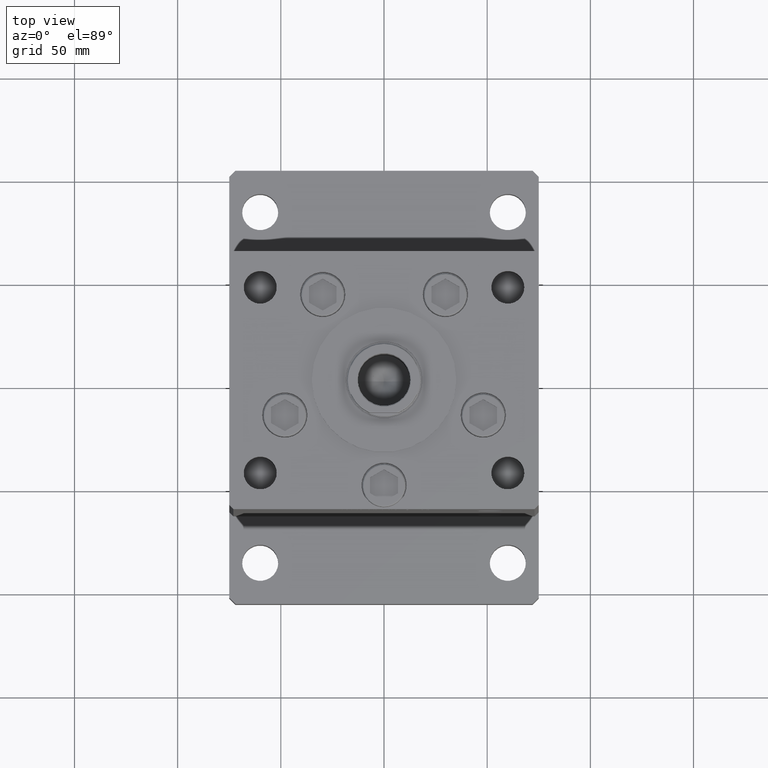
[diagram: clean part render]
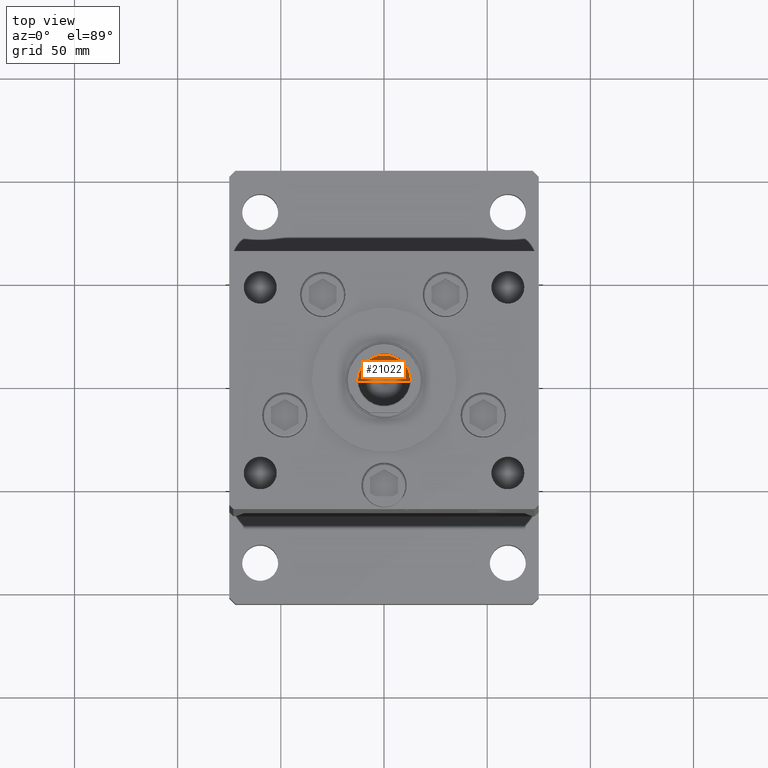
[diagram: same view with one face highlighted and labeled with its STEP entity id]
A machine part, top view. The second image highlights one B-rep face of the part: STEP entity #21022.
In plain terms, the highlighted conical surface has half-angle 59 deg.
Its self-contained STEP definition (entity closure, byte-faithful):
#3234 = EDGE_LOOP ( 'NONE', ( #50127, #35029, #25343 ) ) ;
#5007 = AXIS2_PLACEMENT_3D ( 'NONE', #15086, #18891, #31361 ) ;
#6017 = DIRECTION ( 'NONE',  ( 0.8571673007021125557, 0.000000000000000000, 0.5150380749100536004 ) ) ;
#6917 = CARTESIAN_POINT ( 'NONE',  ( -1.307202896762960287E-14, 0.000000000000000000, 129.8390271073986355 ) ) ;
#7659 = DIRECTION ( 'NONE',  ( -0.8571673007021125557, 1.049727191138618942E-16, 0.5150380749100536004 ) ) ;
#11686 = VERTEX_POINT ( 'NONE', #38144 ) ;
#15086 = CARTESIAN_POINT ( 'NONE',  ( 0.000000000000000000, 0.000000000000000000, 137.5000000000000000 ) ) ;
#16126 = EDGE_CURVE ( 'NONE', #44374, #11686, #27738, .T. ) ;
#17355 = DIRECTION ( 'NONE',  ( -0.000000000000000000, -0.000000000000000000, 1.000000000000000000 ) ) ;
#18891 = DIRECTION ( 'NONE',  ( -0.000000000000000000, -0.000000000000000000, 1.000000000000000000 ) ) ;
#19572 = LINE ( 'NONE', #36133, #37813 ) ;
#21022 = ADVANCED_FACE ( 'NONE', ( #34430 ), #53303, .F. ) ;
#21499 = VERTEX_POINT ( 'NONE', #24309 ) ;
#24309 = CARTESIAN_POINT ( 'NONE',  ( 12.74999999999999112, 0.000000000000000000, 137.5000000000000000 ) ) ;
#25343 = ORIENTED_EDGE ( 'NONE', *, *, #51556, .T. ) ;
#27176 = VECTOR ( 'NONE', #7659, 1000.000000000000114 ) ;
#27738 = LINE ( 'NONE', #44280, #27176 ) ;
#31361 = DIRECTION ( 'NONE',  ( 1.000000000000000000, 0.000000000000000000, 0.000000000000000000 ) ) ;
#31671 = AXIS2_PLACEMENT_3D ( 'NONE', #50949, #17355, #38499 ) ;
#34430 = FACE_OUTER_BOUND ( 'NONE', #3234, .T. ) ;
#35029 = ORIENTED_EDGE ( 'NONE', *, *, #47855, .T. ) ;
#36133 = CARTESIAN_POINT ( 'NONE',  ( 12.74999999999999112, 0.000000000000000000, 137.5000000000000000 ) ) ;
#37813 = VECTOR ( 'NONE', #6017, 1000.000000000000114 ) ;
#38144 = CARTESIAN_POINT ( 'NONE',  ( -12.74999999999999112, 1.561424668912874125E-15, 137.5000000000000000 ) ) ;
#38499 = DIRECTION ( 'NONE',  ( 1.000000000000000000, 0.000000000000000000, 0.000000000000000000 ) ) ;
#44280 = CARTESIAN_POINT ( 'NONE',  ( -12.74999999999999112, 1.561424668912874125E-15, 137.5000000000000000 ) ) ;
#44374 = VERTEX_POINT ( 'NONE', #6917 ) ;
#45709 = CIRCLE ( 'NONE', #5007, 12.74999999999999112 ) ;
#47855 = EDGE_CURVE ( 'NONE', #44374, #21499, #19572, .T. ) ;
#50127 = ORIENTED_EDGE ( 'NONE', *, *, #16126, .F. ) ;
#50949 = CARTESIAN_POINT ( 'NONE',  ( 0.000000000000000000, 0.000000000000000000, 137.5000000000000000 ) ) ;
#51556 = EDGE_CURVE ( 'NONE', #21499, #11686, #45709, .T. ) ;
#53303 = CONICAL_SURFACE ( 'NONE', #31671, 12.74999999999999112, 1.029744258676655200 ) ;